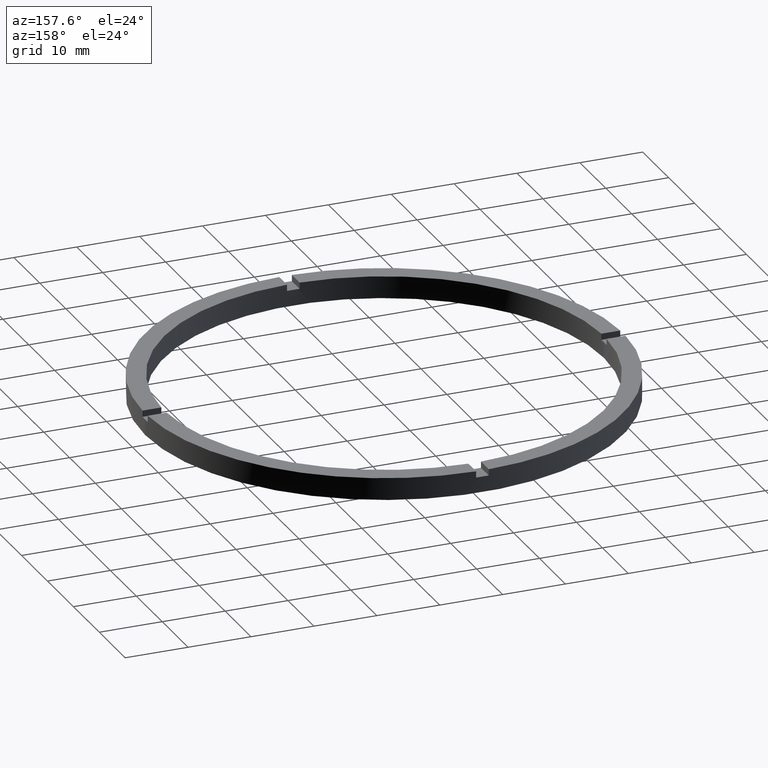
[diagram: clean part render]
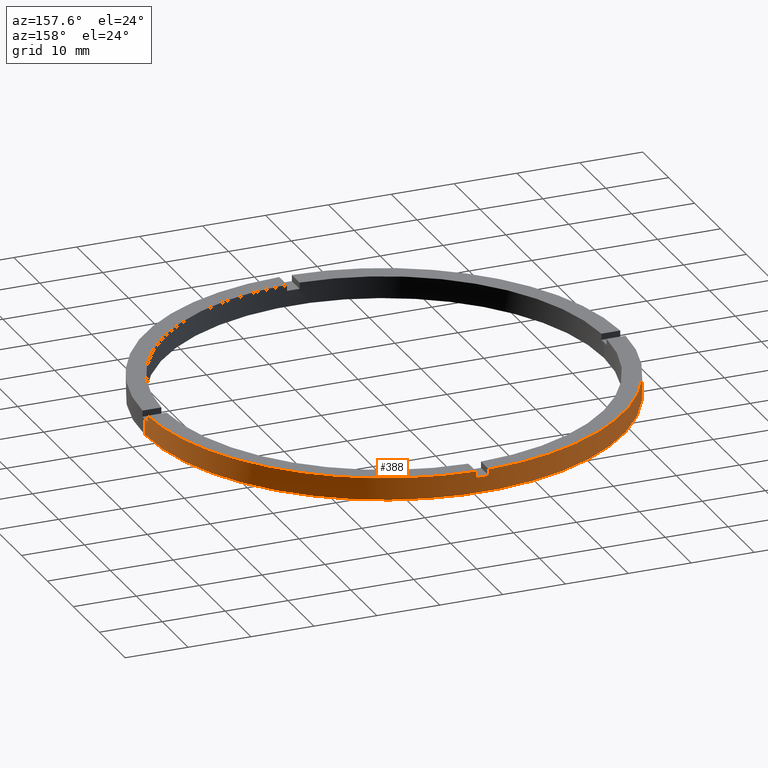
[diagram: same view with one face highlighted and labeled with its STEP entity id]
A machine part, auxiliary view. The second image highlights one B-rep face of the part: STEP entity #388.
In plain terms, the highlighted cylindrical surface (partial cylindrical patch) has radius 38 mm, axis along (-0, -0, -1).
Its self-contained STEP definition (entity closure, byte-faithful):
#2 = EDGE_CURVE ( 'NONE', #410, #122, #719, .T. ) ;
#12 = DIRECTION ( 'NONE',  ( 0.000000000000000000, 0.000000000000000000, 1.000000000000000000 ) ) ;
#13 = DIRECTION ( 'NONE',  ( 0.000000000000000000, -0.000000000000000000, 1.000000000000000000 ) ) ;
#22 = LINE ( 'NONE', #773, #297 ) ;
#26 = CYLINDRICAL_SURFACE ( 'NONE', #422, 38.00000000000000000 ) ;
#27 = EDGE_CURVE ( 'NONE', #426, #626, #705, .T. ) ;
#40 = CARTESIAN_POINT ( 'NONE',  ( 37.98683982644516277, 0.9999999999998425704, 3.500000000000000000 ) ) ;
#41 = LINE ( 'NONE', #66, #49 ) ;
#49 = VECTOR ( 'NONE', #737, 1000.000000000000000 ) ;
#54 = CARTESIAN_POINT ( 'NONE',  ( 38.00000000000000000, 4.653657836759941941E-15, 3.500000000000000000 ) ) ;
#58 = CIRCLE ( 'NONE', #267, 38.00000000000000000 ) ;
#63 = FACE_OUTER_BOUND ( 'NONE', #428, .T. ) ;
#66 = CARTESIAN_POINT ( 'NONE',  ( -38.00000000000000000, 0.000000000000000000, 3.500000000000000000 ) ) ;
#78 = AXIS2_PLACEMENT_3D ( 'NONE', #273, #13, #525 ) ;
#79 = VECTOR ( 'NONE', #560, 1000.000000000000000 ) ;
#92 = DIRECTION ( 'NONE',  ( 0.000000000000000000, 0.000000000000000000, 1.000000000000000000 ) ) ;
#99 = DIRECTION ( 'NONE',  ( 0.000000000000000000, 0.000000000000000000, 1.000000000000000000 ) ) ;
#108 = LINE ( 'NONE', #700, #384 ) ;
#122 = VERTEX_POINT ( 'NONE', #321 ) ;
#124 = AXIS2_PLACEMENT_3D ( 'NONE', #621, #12, #270 ) ;
#127 = CARTESIAN_POINT ( 'NONE',  ( -1.000000000000025313, 37.98683982644515567, 3.500000000000000000 ) ) ;
#140 = CARTESIAN_POINT ( 'NONE',  ( 0.000000000000000000, 0.000000000000000000, 3.500000000000000000 ) ) ;
#147 = CARTESIAN_POINT ( 'NONE',  ( 0.9999999999999746869, 37.98683982644515567, 2.500000000000000000 ) ) ;
#148 = VERTEX_POINT ( 'NONE', #418 ) ;
#149 = DIRECTION ( 'NONE',  ( 1.000000000000000000, 0.000000000000000000, 0.000000000000000000 ) ) ;
#158 = CARTESIAN_POINT ( 'NONE',  ( 0.9999999999999746869, 37.98683982644515567, 3.500000000000000000 ) ) ;
#174 = ORIENTED_EDGE ( 'NONE', *, *, #405, .F. ) ;
#181 = DIRECTION ( 'NONE',  ( -0.000000000000000000, -0.000000000000000000, -1.000000000000000000 ) ) ;
#193 = ORIENTED_EDGE ( 'NONE', *, *, #641, .T. ) ;
#194 = CARTESIAN_POINT ( 'NONE',  ( -37.98683982644515567, 0.9999999999999722444, 3.500000000000000000 ) ) ;
#196 = DIRECTION ( 'NONE',  ( -0.000000000000000000, -0.000000000000000000, -1.000000000000000000 ) ) ;
#203 = CARTESIAN_POINT ( 'NONE',  ( -38.00000000000000000, 0.000000000000000000, 0.000000000000000000 ) ) ;
#208 = ORIENTED_EDGE ( 'NONE', *, *, #781, .T. ) ;
#225 = VERTEX_POINT ( 'NONE', #534 ) ;
#252 = ORIENTED_EDGE ( 'NONE', *, *, #2, .T. ) ;
#256 = VERTEX_POINT ( 'NONE', #530 ) ;
#267 = AXIS2_PLACEMENT_3D ( 'NONE', #566, #743, #393 ) ;
#270 = DIRECTION ( 'NONE',  ( 1.000000000000000000, 0.000000000000000000, 0.000000000000000000 ) ) ;
#273 = CARTESIAN_POINT ( 'NONE',  ( 0.000000000000000000, 0.000000000000000000, 2.500000000000000000 ) ) ;
#274 = DIRECTION ( 'NONE',  ( -0.000000000000000000, -0.000000000000000000, -1.000000000000000000 ) ) ;
#282 = CARTESIAN_POINT ( 'NONE',  ( 0.000000000000000000, 0.000000000000000000, 0.000000000000000000 ) ) ;
#283 = VECTOR ( 'NONE', #181, 1000.000000000000000 ) ;
#286 = LINE ( 'NONE', #127, #283 ) ;
#297 = VECTOR ( 'NONE', #274, 1000.000000000000000 ) ;
#301 = CIRCLE ( 'NONE', #635, 38.00000000000000000 ) ;
#302 = CIRCLE ( 'NONE', #78, 38.00000000000000000 ) ;
#309 = AXIS2_PLACEMENT_3D ( 'NONE', #636, #576, #149 ) ;
#312 = DIRECTION ( 'NONE',  ( -1.000000000000000000, 0.000000000000000000, 0.000000000000000000 ) ) ;
#321 = CARTESIAN_POINT ( 'NONE',  ( 0.9999999999999746869, 37.98683982644515567, 3.500000000000000000 ) ) ;
#352 = CARTESIAN_POINT ( 'NONE',  ( -38.00000000000000000, 0.000000000000000000, 2.500000000000000000 ) ) ;
#365 = DIRECTION ( 'NONE',  ( 1.000000000000000000, 0.000000000000000000, 0.000000000000000000 ) ) ;
#377 = EDGE_CURVE ( 'NONE', #417, #454, #592, .T. ) ;
#384 = VECTOR ( 'NONE', #92, 1000.000000000000000 ) ;
#388 = ADVANCED_FACE ( 'NONE', ( #63 ), #26, .T. ) ;
#391 = ORIENTED_EDGE ( 'NONE', *, *, #716, .F. ) ;
#393 = DIRECTION ( 'NONE',  ( 1.000000000000000000, 0.000000000000000000, 0.000000000000000000 ) ) ;
#398 = VERTEX_POINT ( 'NONE', #203 ) ;
#405 = EDGE_CURVE ( 'NONE', #410, #486, #302, .T. ) ;
#409 = DIRECTION ( 'NONE',  ( 1.000000000000000000, 0.000000000000000000, 0.000000000000000000 ) ) ;
#410 = VERTEX_POINT ( 'NONE', #147 ) ;
#417 = VERTEX_POINT ( 'NONE', #775 ) ;
#418 = CARTESIAN_POINT ( 'NONE',  ( 38.00000000000000000, 4.653657836759941941E-15, 0.000000000000000000 ) ) ;
#422 = AXIS2_PLACEMENT_3D ( 'NONE', #140, #196, #312 ) ;
#423 = CARTESIAN_POINT ( 'NONE',  ( -37.98683982644515567, 0.9999999999999722444, 2.500000000000000000 ) ) ;
#426 = VERTEX_POINT ( 'NONE', #423 ) ;
#427 = VERTEX_POINT ( 'NONE', #40 ) ;
#428 = EDGE_LOOP ( 'NONE', ( #759, #208, #457, #630, #732, #193, #741, #459, #174, #252, #391, #499 ) ) ;
#438 = CARTESIAN_POINT ( 'NONE',  ( -1.000000000000025313, 37.98683982644515567, 2.500000000000000000 ) ) ;
#454 = VERTEX_POINT ( 'NONE', #194 ) ;
#457 = ORIENTED_EDGE ( 'NONE', *, *, #543, .T. ) ;
#459 = ORIENTED_EDGE ( 'NONE', *, *, #470, .T. ) ;
#469 = DIRECTION ( 'NONE',  ( 0.000000000000000000, 0.000000000000000000, 1.000000000000000000 ) ) ;
#470 = EDGE_CURVE ( 'NONE', #417, #486, #286, .T. ) ;
#474 = VECTOR ( 'NONE', #469, 1000.000000000000000 ) ;
#486 = VERTEX_POINT ( 'NONE', #438 ) ;
#499 = ORIENTED_EDGE ( 'NONE', *, *, #565, .T. ) ;
#525 = DIRECTION ( 'NONE',  ( 1.000000000000000000, 0.000000000000000000, 0.000000000000000000 ) ) ;
#530 = CARTESIAN_POINT ( 'NONE',  ( 38.00000000000000000, 4.653657836759941941E-15, 2.500000000000000000 ) ) ;
#534 = CARTESIAN_POINT ( 'NONE',  ( 37.98683982644516277, 0.9999999999998425704, 2.500000000000000000 ) ) ;
#543 = EDGE_CURVE ( 'NONE', #148, #398, #301, .T. ) ;
#556 = CIRCLE ( 'NONE', #309, 38.00000000000000000 ) ;
#560 = DIRECTION ( 'NONE',  ( -0.000000000000000000, -0.000000000000000000, -1.000000000000000000 ) ) ;
#565 = EDGE_CURVE ( 'NONE', #427, #225, #22, .T. ) ;
#566 = CARTESIAN_POINT ( 'NONE',  ( 0.000000000000000000, 0.000000000000000000, 3.500000000000000000 ) ) ;
#572 = EDGE_CURVE ( 'NONE', #256, #225, #556, .T. ) ;
#576 = DIRECTION ( 'NONE',  ( 0.000000000000000000, 0.000000000000000000, 1.000000000000000000 ) ) ;
#577 = LINE ( 'NONE', #54, #79 ) ;
#592 = CIRCLE ( 'NONE', #124, 38.00000000000000000 ) ;
#619 = AXIS2_PLACEMENT_3D ( 'NONE', #692, #690, #365 ) ;
#621 = CARTESIAN_POINT ( 'NONE',  ( 0.000000000000000000, 0.000000000000000000, 3.500000000000000000 ) ) ;
#626 = VERTEX_POINT ( 'NONE', #352 ) ;
#630 = ORIENTED_EDGE ( 'NONE', *, *, #752, .F. ) ;
#635 = AXIS2_PLACEMENT_3D ( 'NONE', #282, #99, #409 ) ;
#636 = CARTESIAN_POINT ( 'NONE',  ( 0.000000000000000000, 0.000000000000000000, 2.500000000000000000 ) ) ;
#641 = EDGE_CURVE ( 'NONE', #426, #454, #108, .T. ) ;
#690 = DIRECTION ( 'NONE',  ( 0.000000000000000000, 0.000000000000000000, 1.000000000000000000 ) ) ;
#692 = CARTESIAN_POINT ( 'NONE',  ( 0.000000000000000000, 0.000000000000000000, 2.500000000000000000 ) ) ;
#700 = CARTESIAN_POINT ( 'NONE',  ( -37.98683982644515567, 0.9999999999999722444, 3.500000000000000000 ) ) ;
#705 = CIRCLE ( 'NONE', #619, 38.00000000000000000 ) ;
#716 = EDGE_CURVE ( 'NONE', #427, #122, #58, .T. ) ;
#719 = LINE ( 'NONE', #158, #474 ) ;
#732 = ORIENTED_EDGE ( 'NONE', *, *, #27, .F. ) ;
#737 = DIRECTION ( 'NONE',  ( -0.000000000000000000, -0.000000000000000000, -1.000000000000000000 ) ) ;
#741 = ORIENTED_EDGE ( 'NONE', *, *, #377, .F. ) ;
#743 = DIRECTION ( 'NONE',  ( 0.000000000000000000, 0.000000000000000000, 1.000000000000000000 ) ) ;
#752 = EDGE_CURVE ( 'NONE', #626, #398, #41, .T. ) ;
#759 = ORIENTED_EDGE ( 'NONE', *, *, #572, .F. ) ;
#773 = CARTESIAN_POINT ( 'NONE',  ( 37.98683982644516277, 0.9999999999998425704, 3.500000000000000000 ) ) ;
#775 = CARTESIAN_POINT ( 'NONE',  ( -1.000000000000025313, 37.98683982644515567, 3.500000000000000000 ) ) ;
#781 = EDGE_CURVE ( 'NONE', #256, #148, #577, .T. ) ;